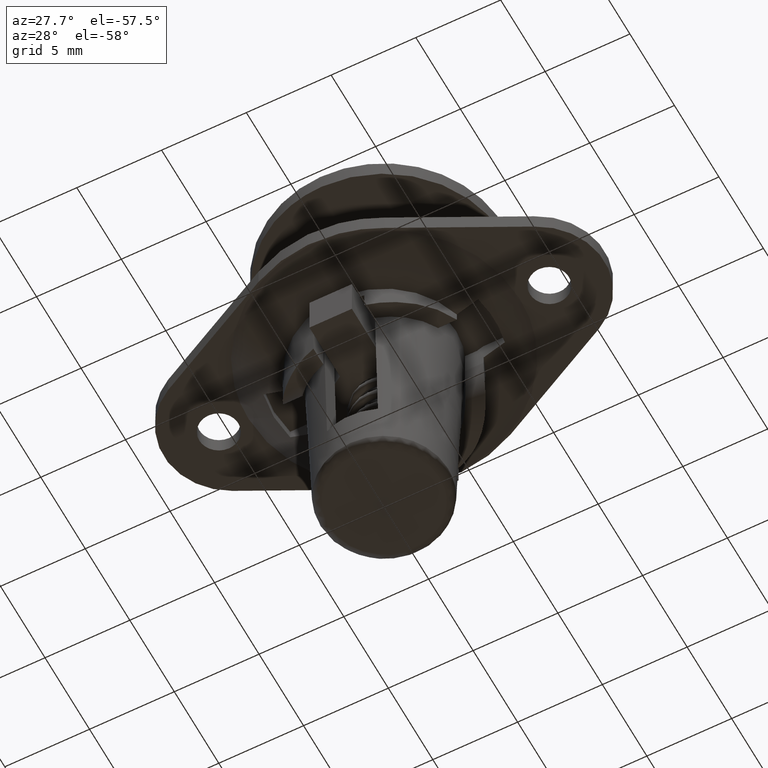
[diagram: clean part render]
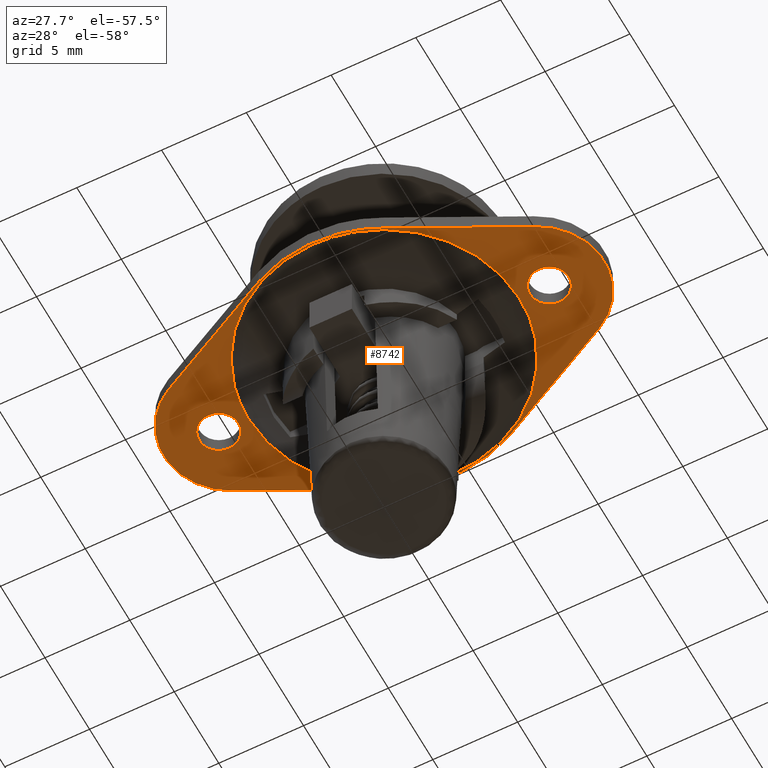
[diagram: same view with one face highlighted and labeled with its STEP entity id]
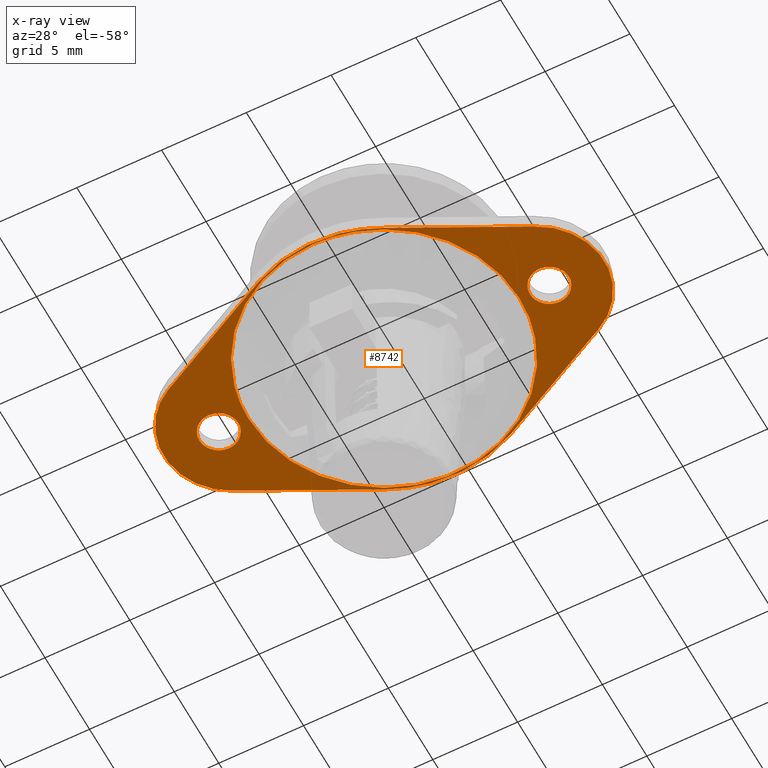
[diagram: x-ray of the same camera — body ghosted, the highlighted face saturated]
A machine part, auxiliary view. The second image highlights one B-rep face of the part: STEP entity #8742.
The next image is the same camera in x-ray: the body ghosted, the highlighted face saturated — about 3% of this face is hidden behind the body in this view.
In plain terms, the highlighted face is a freeform B-spline surface patch.
Its self-contained STEP definition (entity closure, byte-faithful):
#6653=CARTESIAN_POINT('',(-10.900000000000000,0.0,-7.999999999999900));
#6654=VERTEX_POINT('',#6653);
#6655=CARTESIAN_POINT('',(-10.552046704685250,-0.824148470492712,-7.999999999997280));
#6656=VERTEX_POINT('',#6655);
#6657=CARTESIAN_POINT('',(-10.900000000000000,0.0,-7.999999999999900));
#6658=CARTESIAN_POINT('',(-10.900035300623120,-0.105289725726984,-7.999999999999571));
#6659=CARTESIAN_POINT('',(-10.878150019083030,-0.263184165240447,-7.999999999999052));
#6660=CARTESIAN_POINT('',(-10.774832421665280,-0.552295228351691,-7.999999999998165));
#6661=CARTESIAN_POINT('',(-10.658504624150931,-0.720775286054009,-7.999999999997604));
#6662=CARTESIAN_POINT('',(-10.552046704685250,-0.824148470492712,-7.999999999997280));
#6663=B_SPLINE_CURVE_WITH_KNOTS('',3,(#6657,#6658,#6659,#6660,#6661,#6662),.UNSPECIFIED.,.F.,.U.,(4,1,1,4),(0.000000012686123,0.315854664908550,0.473770848220004,0.918842579905745),.UNSPECIFIED.);
#6664=EDGE_CURVE('',#6654,#6656,#6663,.T.);
#6666=CARTESIAN_POINT('',(-9.750000664746422,1.149999999999808,-7.999999999999901));
#6667=VERTEX_POINT('',#6666);
#6668=CARTESIAN_POINT('',(-9.750000664746422,1.149999999999808,-7.999999999999901));
#6669=CARTESIAN_POINT('',(-9.815856694185284,1.150002070243000,-7.999999999999899));
#6670=CARTESIAN_POINT('',(-9.971097299913305,1.136643387063590,-7.999999999999902));
#6671=CARTESIAN_POINT('',(-10.198132340221759,1.069296448872176,-7.999999999999907));
#6672=CARTESIAN_POINT('',(-10.437665834544500,0.935552444494431,-7.999999999999897));
#6673=CARTESIAN_POINT('',(-10.625466945124300,0.761083037786011,-7.999999999999878));
#6674=CARTESIAN_POINT('',(-10.776447736260970,0.538101250960247,-8.000000000000004));
#6675=CARTESIAN_POINT('',(-10.874990989102949,0.291649021468684,-7.999999999999893));
#6676=CARTESIAN_POINT('',(-10.900030497191789,0.098790530188240,-7.999999999999892));
#6677=CARTESIAN_POINT('',(-10.900000000000000,0.0,-7.999999999999900));
#6678=B_SPLINE_CURVE_WITH_KNOTS('',3,(#6668,#6669,#6670,#6671,#6672,#6673,#6674,#6675,#6676,#6677),.UNSPECIFIED.,.F.,.U.,(4,1,1,1,1,1,1,4),(0.000000048942034,0.197570362115641,0.465719467744257,0.705643079026272,1.016107629091632,1.227804094314206,1.510062185376091,1.806426735646137),.UNSPECIFIED.);
#6679=EDGE_CURVE('',#6667,#6654,#6678,.T.);
#6681=CARTESIAN_POINT('',(-8.600000000000000,0.0,-7.999999999999900));
#6682=VERTEX_POINT('',#6681);
#6683=CARTESIAN_POINT('',(-8.600000000000000,0.0,-7.999999999999900));
#6684=CARTESIAN_POINT('',(-8.599924127396992,0.127026258699681,-7.999999999999895));
#6685=CARTESIAN_POINT('',(-8.633871161686988,0.329243848655233,-7.999999999999917));
#6686=CARTESIAN_POINT('',(-8.761822741660108,0.608596515519283,-7.999999999999886));
#6687=CARTESIAN_POINT('',(-8.910758864911172,0.799457927925871,-7.999999999999908));
#6688=CARTESIAN_POINT('',(-9.099519268826759,0.956281017616971,-7.999999999999899));
#6689=CARTESIAN_POINT('',(-9.301865718877135,1.069300016572708,-7.999999999999892));
#6690=CARTESIAN_POINT('',(-9.528903785446017,1.136643407511188,-7.999999999999949));
#6691=CARTESIAN_POINT('',(-9.684144653954164,1.150002128915238,-7.999999999999829));
#6692=CARTESIAN_POINT('',(-9.750000664746422,1.149999999999808,-7.999999999999901));
#6693=B_SPLINE_CURVE_WITH_KNOTS('',3,(#6683,#6684,#6685,#6686,#6687,#6688,#6689,#6690,#6691,#6692),.UNSPECIFIED.,.F.,.U.,(4,1,1,1,1,1,1,4),(0.000000048713214,0.381042794343570,0.606849093334801,0.917311537844349,1.100784162428773,1.340707872894254,1.608857089966248,1.806427484974979),.UNSPECIFIED.);
#6694=EDGE_CURVE('',#6682,#6667,#6693,.T.);
#6696=CARTESIAN_POINT('',(-8.973071162493390,-0.847869071393267,-8.000000000004819));
#6697=VERTEX_POINT('',#6696);
#6698=CARTESIAN_POINT('',(-8.973071162493390,-0.847869071393267,-8.000000000004819));
#6699=CARTESIAN_POINT('',(-8.877808213001726,-0.760704837221626,-8.000000000004313));
#6700=CARTESIAN_POINT('',(-8.757428152951308,-0.605535715005010,-8.000000000003439));
#6701=CARTESIAN_POINT('',(-8.630863934168644,-0.312786360502125,-8.000000000001668));
#6702=CARTESIAN_POINT('',(-8.599925081763832,-0.124150896432877,-8.000000000000650));
#6703=CARTESIAN_POINT('',(-8.600000000000000,0.0,-7.999999999999900));
#6704=B_SPLINE_CURVE_WITH_KNOTS('',3,(#6698,#6699,#6700,#6701,#6702,#6703),.UNSPECIFIED.,.F.,.U.,(4,1,1,4),(0.000000013521598,0.387320494585099,0.580972865052217,0.953392855476119),.UNSPECIFIED.);
#6705=EDGE_CURVE('',#6697,#6682,#6704,.T.);
#6788=CARTESIAN_POINT('',(-9.749999335253566,-1.149999999999808,-7.999999999999900));
#6789=VERTEX_POINT('',#6788);
#6790=CARTESIAN_POINT('',(-10.552046704685250,-0.824148470492712,-7.999999999997280));
#6791=CARTESIAN_POINT('',(-10.459340756998120,-0.914505204986957,-7.999999999997548));
#6792=CARTESIAN_POINT('',(-10.297057650607680,-1.026041443008237,-7.999999999998200));
#6793=CARTESIAN_POINT('',(-10.018105314480890,-1.127771500038885,-7.999999999998952));
#6794=CARTESIAN_POINT('',(-9.851705566248549,-1.150030396406160,-7.999999999999607));
#6795=CARTESIAN_POINT('',(-9.749999335253566,-1.149999999999808,-7.999999999999900));
#6796=B_SPLINE_CURVE_WITH_KNOTS('',3,(#6790,#6791,#6792,#6793,#6794,#6795),.UNSPECIFIED.,.F.,.U.,(4,1,1,4),(0.000000010680414,0.388321604344121,0.582475456980643,0.887585074851957),.UNSPECIFIED.);
#6797=EDGE_CURVE('',#6656,#6789,#6796,.T.);
#6821=CARTESIAN_POINT('',(-9.749999335253566,-1.149999999999808,-7.999999999999900));
#6822=CARTESIAN_POINT('',(-9.652253523719374,-1.150028661139451,-8.000000000000529));
#6823=CARTESIAN_POINT('',(-9.483441473250990,-1.128337191817860,-8.000000000001574));
#6824=CARTESIAN_POINT('',(-9.214951421712232,-1.031047375591486,-8.000000000003297));
#6825=CARTESIAN_POINT('',(-9.058208892923163,-0.925949973917983,-8.000000000004283));
#6826=CARTESIAN_POINT('',(-8.973071162493390,-0.847869071393267,-8.000000000004819));
#6827=B_SPLINE_CURVE_WITH_KNOTS('',3,(#6821,#6822,#6823,#6824,#6825,#6826),.UNSPECIFIED.,.F.,.U.,(4,1,1,4),(5.150371E-009,0.293235382384166,0.506497182425102,0.853048144613039),.UNSPECIFIED.);
#6828=EDGE_CURVE('',#6789,#6697,#6827,.T.);
#6859=CARTESIAN_POINT('',(8.600000000000000,0.0,-7.999999999999900));
#6860=VERTEX_POINT('',#6859);
#6861=CARTESIAN_POINT('',(8.947953295314751,-0.824148470492712,-7.999999999997280));
#6862=VERTEX_POINT('',#6861);
#6863=CARTESIAN_POINT('',(8.600000000000000,0.0,-7.999999999999900));
#6864=CARTESIAN_POINT('',(8.599991045623384,-0.081354757863559,-7.999999999999661));
#6865=CARTESIAN_POINT('',(8.619362892252225,-0.263208108227133,-7.999999999999037));
#6866=CARTESIAN_POINT('',(8.723312022163571,-0.554109511263112,-7.999999999998186));
#6867=CARTESIAN_POINT('',(8.858738816582054,-0.737409508190836,-7.999999999997525));
#6868=CARTESIAN_POINT('',(8.947953295314751,-0.824148470492712,-7.999999999997280));
#6869=B_SPLINE_CURVE_WITH_KNOTS('',3,(#6863,#6864,#6865,#6866,#6867,#6868),.UNSPECIFIED.,.F.,.U.,(4,1,1,4),(0.000000012686505,0.244067662716665,0.545559741520143,0.918842579905742),.UNSPECIFIED.);
#6870=EDGE_CURVE('',#6860,#6862,#6869,.T.);
#6872=CARTESIAN_POINT('',(9.749999335253579,1.149999999999808,-7.999999999999900));
#6873=VERTEX_POINT('',#6872);
#6874=CARTESIAN_POINT('',(9.749999335253579,1.149999999999808,-7.999999999999900));
#6875=CARTESIAN_POINT('',(9.622977247118909,1.150066608400949,-7.999999999999903));
#6876=CARTESIAN_POINT('',(9.387815973203644,1.110638999334596,-7.999999999999910));
#6877=CARTESIAN_POINT('',(9.112819093249813,0.970086436589648,-7.999999999999879));
#6878=CARTESIAN_POINT('',(8.929449005385784,0.813805549771026,-7.999999999999953));
#6879=CARTESIAN_POINT('',(8.793713553724263,0.650486099947327,-7.999999999999837));
#6880=CARTESIAN_POINT('',(8.689935546304394,0.464649696751496,-7.999999999999933));
#6881=CARTESIAN_POINT('',(8.617223049436714,0.239907754940624,-7.999999999999844));
#6882=CARTESIAN_POINT('',(8.599986024347617,0.084674073480456,-7.999999999999838));
#6883=CARTESIAN_POINT('',(8.600000000000000,0.0,-7.999999999999900));
#6884=B_SPLINE_CURVE_WITH_KNOTS('',3,(#6874,#6875,#6876,#6877,#6878,#6879,#6880,#6881,#6882,#6883),.UNSPECIFIED.,.F.,.U.,(4,1,1,1,1,1,1,4),(0.000000048940833,0.381042636540744,0.705643079026415,0.917311157117825,1.100783705128980,1.340707316902257,1.552404500919723,1.806426735646170),.UNSPECIFIED.);
#6885=EDGE_CURVE('',#6873,#6860,#6884,.T.);
#6887=CARTESIAN_POINT('',(10.900000000000000,0.0,-7.999999999999900));
#6888=VERTEX_POINT('',#6887);
#6889=CARTESIAN_POINT('',(10.900000000000000,0.0,-7.999999999999900));
#6890=CARTESIAN_POINT('',(10.900155639149681,0.145859698175880,-7.999999999999893));
#6891=CARTESIAN_POINT('',(10.858250031563839,0.362130506599205,-7.999999999999903));
#6892=CARTESIAN_POINT('',(10.712048729897960,0.648191671462418,-7.999999999999895));
#6893=CARTESIAN_POINT('',(10.540904487728319,0.851612782776992,-7.999999999999910));
#6894=CARTESIAN_POINT('',(10.328833091677090,1.002882688740010,-7.999999999999895));
#6895=CARTESIAN_POINT('',(10.069840131943909,1.117714103009564,-7.999999999999867));
#6896=CARTESIAN_POINT('',(9.877024339214710,1.150072326469509,-8.0));
#6897=CARTESIAN_POINT('',(9.749999335253579,1.149999999999808,-7.999999999999900));
#6898=B_SPLINE_CURVE_WITH_KNOTS('',3,(#6889,#6890,#6891,#6892,#6893,#6894,#6895,#6896,#6897),.UNSPECIFIED.,.F.,.U.,(4,1,1,1,1,1,4),(0.000000048714302,0.437494154798415,0.649191426896494,0.959659455467271,1.227804603209104,1.425384739205318,1.806427484974978),.UNSPECIFIED.);
#6899=EDGE_CURVE('',#6888,#6873,#6898,.T.);
#6901=CARTESIAN_POINT('',(10.526928837506610,-0.847869071393267,-8.000000000004819));
#6902=VERTEX_POINT('',#6901);
#6903=CARTESIAN_POINT('',(10.526928837506610,-0.847869071393267,-8.000000000004819));
#6904=CARTESIAN_POINT('',(10.618515142448540,-0.764050284950643,-8.000000000004338));
#6905=CARTESIAN_POINT('',(10.730462870739689,-0.621705043255209,-8.000000000003485));
#6906=CARTESIAN_POINT('',(10.864432369495340,-0.332621062530906,-8.000000000001849));
#6907=CARTESIAN_POINT('',(10.900127049432600,-0.139061287572477,-8.000000000000709));
#6908=CARTESIAN_POINT('',(10.900000000000000,0.0,-7.999999999999900));
#6909=B_SPLINE_CURVE_WITH_KNOTS('',3,(#6903,#6904,#6905,#6906,#6907,#6908),.UNSPECIFIED.,.F.,.U.,(4,1,1,4),(0.000000013522319,0.372420003935394,0.536279028799606,0.953392855476121),.UNSPECIFIED.);
#6910=EDGE_CURVE('',#6902,#6888,#6909,.T.);
#6992=CARTESIAN_POINT('',(9.750000664746436,-1.149999999999808,-7.999999999999900));
#6993=VERTEX_POINT('',#6992);
#6994=CARTESIAN_POINT('',(8.947953295314751,-0.824148470492712,-7.999999999997280));
#6995=CARTESIAN_POINT('',(9.040660155574068,-0.914499982270607,-7.999999999997592));
#6996=CARTESIAN_POINT('',(9.222258832281025,-1.039340418963857,-7.999999999998198));
#6997=CARTESIAN_POINT('',(9.504994704093791,-1.132881222034677,-7.999999999999031));
#6998=CARTESIAN_POINT('',(9.671412581000775,-1.150009865130402,-7.999999999999713));
#6999=CARTESIAN_POINT('',(9.750000664746436,-1.149999999999808,-7.999999999999900));
#7000=B_SPLINE_CURVE_WITH_KNOTS('',3,(#6994,#6995,#6996,#6997,#6998,#6999),.UNSPECIFIED.,.F.,.U.,(4,1,1,4),(0.000000010682365,0.388321604344662,0.651820219940770,0.887585074851955),.UNSPECIFIED.);
#7001=EDGE_CURVE('',#6862,#6993,#7000,.T.);
#7025=CARTESIAN_POINT('',(9.750000664746436,-1.149999999999808,-7.999999999999900));
#7026=CARTESIAN_POINT('',(9.865522956316896,-1.150058664778676,-8.000000000000641));
#7027=CARTESIAN_POINT('',(10.052084555478331,-1.121630763479847,-8.000000000001807));
#7028=CARTESIAN_POINT('',(10.315768863732680,-1.011987045060999,-8.000000000003496));
#7029=CARTESIAN_POINT('',(10.454880396058750,-0.913922928641902,-8.000000000004340));
#7030=CARTESIAN_POINT('',(10.526928837506610,-0.847869071393267,-8.000000000004819));
#7031=B_SPLINE_CURVE_WITH_KNOTS('',3,(#7025,#7026,#7027,#7028,#7029,#7030),.UNSPECIFIED.,.F.,.U.,(4,1,1,4),(5.150476E-009,0.346550967324778,0.559812767371451,0.853048144613035),.UNSPECIFIED.);
#7032=EDGE_CURVE('',#6993,#6902,#7031,.T.);
#7350=CARTESIAN_POINT('',(-0.457544518845940,7.987255736114569,-8.000015461254641));
#7351=VERTEX_POINT('',#7350);
#7352=CARTESIAN_POINT('',(8.000371227433691,0.0,-8.0));
#7353=VERTEX_POINT('',#7352);
#7354=CARTESIAN_POINT('',(-0.457544518845940,7.987255736114569,-8.000015461254641));
#7355=CARTESIAN_POINT('',(0.050402469978241,8.016416794421904,-8.000014997043213));
#7356=CARTESIAN_POINT('',(0.850526718629831,7.985761871878577,-8.000014195921944));
#7357=CARTESIAN_POINT('',(1.901746484645055,7.786168125157229,-8.000012998011849));
#7358=CARTESIAN_POINT('',(2.714736504424685,7.541310599579709,-8.000011988995430));
#7359=CARTESIAN_POINT('',(3.513400594189876,7.206014387913483,-8.000010911295290));
#7360=CARTESIAN_POINT('',(4.344202890477302,6.742649957464578,-8.000009685676080));
#7361=CARTESIAN_POINT('',(5.056924500741812,6.219951325509177,-8.000008520013324));
#7362=CARTESIAN_POINT('',(5.720712597663130,5.612764100559030,-8.000007324536501));
#7363=CARTESIAN_POINT('',(6.319986954648026,4.940654023512678,-8.000006132156200));
#7364=CARTESIAN_POINT('',(6.848583040526605,4.169603148983364,-8.000004917784858));
#7365=CARTESIAN_POINT('',(7.301052576318405,3.314102475720345,-8.000003699912407));
#7366=CARTESIAN_POINT('',(7.647061601569688,2.427378009013414,-8.000002556419014));
#7367=CARTESIAN_POINT('',(7.927667207018319,1.288886909238484,-8.000001246383171));
#7368=CARTESIAN_POINT('',(8.000420865386536,0.474861065236356,-8.000000433269696));
#7369=CARTESIAN_POINT('',(8.000371227433691,0.0,-8.0));
#7370=B_SPLINE_CURVE_WITH_KNOTS('',3,(#7354,#7355,#7356,#7357,#7358,#7359,#7360,#7361,#7362,#7363,#7364,#7365,#7366,#7367,#7368,#7369),.UNSPECIFIED.,.F.,.U.,(4,1,1,1,1,1,1,1,1,1,1,1,1,4),(0.000000020816081,1.526336210216650,2.391264102799202,3.205311555998742,4.070237348193826,4.986048899443960,6.054491332078333,6.715884623484827,7.682561736128794,8.751007131756007,9.514177413188859,10.582619871983569,11.600182790012930,13.024757562581639),.UNSPECIFIED.);
#7371=EDGE_CURVE('',#7351,#7353,#7370,.T.);
#7373=CARTESIAN_POINT('',(-0.000001752265324,-8.000371227433675,-7.999999094590153));
#7374=VERTEX_POINT('',#7373);
#7375=CARTESIAN_POINT('',(8.000371227433691,0.0,-8.0));
#7376=CARTESIAN_POINT('',(8.000380668635353,-0.343625340215708,-8.000000000001053));
#7377=CARTESIAN_POINT('',(7.956030042700381,-1.030876765496890,-7.999999994981906));
#7378=CARTESIAN_POINT('',(7.779654635979551,-1.932021393990635,-7.999999975021269));
#7379=CARTESIAN_POINT('',(7.503176916572967,-2.823713377481068,-7.999999943732089));
#7380=CARTESIAN_POINT('',(7.168921608930335,-3.590448400054093,-7.999999905903939));
#7381=CARTESIAN_POINT('',(6.701236309693859,-4.398569464123348,-7.999999852975831));
#7382=CARTESIAN_POINT('',(6.071756728958961,-5.258391641755497,-7.999999781736761));
#7383=CARTESIAN_POINT('',(5.270002778274299,-6.060126120339694,-7.999999691001633));
#7384=CARTESIAN_POINT('',(4.267146613618974,-6.799123634231598,-7.999999577507547));
#7385=CARTESIAN_POINT('',(3.385282915706038,-7.273975328171029,-7.999999477705880));
#7386=CARTESIAN_POINT('',(2.390706876711819,-7.654107102051978,-7.999999365149155));
#7387=CARTESIAN_POINT('',(1.325405835158460,-7.924439854827599,-7.999999244587431));
#7388=CARTESIAN_POINT('',(0.474533216708887,-8.000416989677134,-7.999999148293974));
#7389=CARTESIAN_POINT('',(-0.000001752265324,-8.000371227433675,-7.999999094590153));
#7390=B_SPLINE_CURVE_WITH_KNOTS('',3,(#7375,#7376,#7377,#7378,#7379,#7380,#7381,#7382,#7383,#7384,#7385,#7386,#7387,#7388,#7389),.UNSPECIFIED.,.F.,.U.,(4,1,1,1,1,1,1,1,1,1,1,1,4),(0.000000021060544,1.030876758375387,2.061763904118584,2.749025168686940,3.829002991838628,4.565349134219175,5.547153106651091,7.019822289761789,7.952532253797913,9.277961228973622,10.014311269035710,11.143374880434919,12.566974988187370),.UNSPECIFIED.);
#7391=EDGE_CURVE('',#7353,#7374,#7390,.T.);
#7393=CARTESIAN_POINT('',(-8.000373705826977,0.0,-7.999998189180420));
#7394=VERTEX_POINT('',#7393);
#7395=CARTESIAN_POINT('',(-0.000001752265324,-8.000371227433675,-7.999999094590153));
#7396=CARTESIAN_POINT('',(-0.490899724537613,-8.000424136690635,-7.999999039034769));
#7397=CARTESIAN_POINT('',(-1.325402326987317,-7.923308493813060,-7.999998944593288));
#7398=CARTESIAN_POINT('',(-2.549210034609816,-7.612777775472211,-7.999998806093842));
#7399=CARTESIAN_POINT('',(-3.504652554219449,-7.217016903393625,-7.999998697965447));
#7400=CARTESIAN_POINT('',(-4.413751765005011,-6.694601556344026,-7.999998595081914));
#7401=CARTESIAN_POINT('',(-5.322730728542441,-6.020534964023778,-7.999998492211706));
#7402=CARTESIAN_POINT('',(-6.226740967047103,-5.088345625143157,-7.999998389904464));
#7403=CARTESIAN_POINT('',(-6.981414702283568,-3.973729083094337,-7.999998304496464));
#7404=CARTESIAN_POINT('',(-7.448465862288059,-2.978285012288403,-7.999998251640806));
#7405=CARTESIAN_POINT('',(-7.761160200468209,-2.011865411167924,-7.999998216251858));
#7406=CARTESIAN_POINT('',(-7.952802959886282,-1.063602759591307,-7.999998194564451));
#7407=CARTESIAN_POINT('',(-8.000388389041472,-0.359989717101924,-7.999998189178551));
#7408=CARTESIAN_POINT('',(-8.000373705826977,0.0,-7.999998189180420));
#7409=B_SPLINE_CURVE_WITH_KNOTS('',3,(#7395,#7396,#7397,#7398,#7399,#7400,#7401,#7402,#7403,#7404,#7405,#7406,#7407,#7408),.UNSPECIFIED.,.F.,.U.,(4,1,1,1,1,1,1,1,1,1,1,4),(0.000000021112305,1.472685221364277,2.503573721912755,3.779911291709928,4.565348924060438,5.645322599795012,7.167091324435841,8.443434654823768,9.670680143414437,10.456120581421660,11.487005852311000,12.566974409838391),.UNSPECIFIED.);
#7410=EDGE_CURVE('',#7374,#7394,#7409,.T.);
#7555=CARTESIAN_POINT('',(-8.000373705826977,0.0,-7.999998189180420));
#7556=CARTESIAN_POINT('',(-8.000475943245007,0.583392522133441,-7.999998855923516));
#7557=CARTESIAN_POINT('',(-7.901623848020287,1.482070521436893,-7.999999989874089));
#7558=CARTESIAN_POINT('',(-7.598268526138782,2.545273651810575,-8.000001532639155));
#7559=CARTESIAN_POINT('',(-7.222251682998832,3.499490832405730,-8.000003029261524));
#7560=CARTESIAN_POINT('',(-6.713335708458327,4.412519413308869,-8.000004622261562));
#7561=CARTESIAN_POINT('',(-5.894346687090305,5.456645109975817,-8.000006699823580));
#7562=CARTESIAN_POINT('',(-5.027036754670609,6.267768120539619,-8.000008563209914));
#7563=CARTESIAN_POINT('',(-4.082968522109101,6.902953620871421,-8.000010308345802));
#7564=CARTESIAN_POINT('',(-3.126238218668429,7.390271057440480,-8.000011898127555));
#7565=CARTESIAN_POINT('',(-1.947396800233673,7.804714795074977,-8.000013644369489));
#7566=CARTESIAN_POINT('',(-0.992754797333900,7.956670963416160,-8.000014848558587));
#7567=CARTESIAN_POINT('',(-0.457544518845940,7.987255736114569,-8.000015461254641));
#7568=B_SPLINE_CURVE_WITH_KNOTS('',3,(#7555,#7556,#7557,#7558,#7559,#7560,#7561,#7562,#7563,#7564,#7565,#7566,#7567),.UNSPECIFIED.,.F.,.U.,(4,1,1,1,1,1,1,1,1,1,4),(0.000000019577339,1.750150097612730,2.696180194262361,3.311100980821877,4.824753526160269,5.818087745732053,7.284412093109928,8.372348953423972,9.223777593253638,10.500923232813260,12.109164239435550),.UNSPECIFIED.);
#7569=EDGE_CURVE('',#7394,#7351,#7568,.T.);
#8365=CARTESIAN_POINT('',(10.822200000000000,3.561000000000120,-7.999999999999900));
#8366=VERTEX_POINT('',#8365);
#8367=CARTESIAN_POINT('',(3.690000000000000,7.211000000000000,-7.999999999999900));
#8368=VERTEX_POINT('',#8367);
#8369=CARTESIAN_POINT('',(10.822200000000000,3.561000000000120,-7.999999999999900));
#8370=CARTESIAN_POINT('',(3.690000000000000,7.211000000000000,-7.999999999999900));
#8371=QUASI_UNIFORM_CURVE('',1,(#8369,#8370),.UNSPECIFIED.,.F.,.U.);
#8372=EDGE_CURVE('',#8366,#8368,#8371,.T.);
#8410=CARTESIAN_POINT('',(10.753063837434420,-3.595381368072060,-7.999999999999900));
#8411=VERTEX_POINT('',#8410);
#8412=CARTESIAN_POINT('',(10.753063837434420,-3.595381368072060,-7.999999999999900));
#8413=CARTESIAN_POINT('',(11.064196507876069,-3.443789639563049,-7.999999999999893));
#8414=CARTESIAN_POINT('',(11.500981075032930,-3.155235548826060,-7.999999999999925));
#8415=CARTESIAN_POINT('',(12.085593652685850,-2.579067523036953,-7.999999999999885));
#8416=CARTESIAN_POINT('',(12.487651903343581,-2.010266976642870,-7.999999999999868));
#8417=CARTESIAN_POINT('',(12.804309236534150,-1.302289914771131,-7.999999999999933));
#8418=CARTESIAN_POINT('',(12.960625051653180,-0.672436815747191,-7.999999999999885));
#8419=CARTESIAN_POINT('',(13.013440975172569,-0.038803288303555,-7.999999999999908));
#8420=CARTESIAN_POINT('',(12.974229131695230,0.619591187710536,-7.999999999999890));
#8421=CARTESIAN_POINT('',(12.821816664901270,1.239024145783497,-7.999999999999900));
#8422=CARTESIAN_POINT('',(12.578061277859250,1.813392428641519,-7.999999999999899));
#8423=CARTESIAN_POINT('',(12.291002188350470,2.302138033632645,-7.999999999999901));
#8424=CARTESIAN_POINT('',(11.872649255338979,2.812346443000986,-7.999999999999897));
#8425=CARTESIAN_POINT('',(11.372314165058530,3.243203270877507,-7.999999999999902));
#8426=CARTESIAN_POINT('',(10.996783707675700,3.471661178075468,-7.999999999999892));
#8427=CARTESIAN_POINT('',(10.822200000000000,3.561000000000120,-7.999999999999900));
#8428=B_SPLINE_CURVE_WITH_KNOTS('',3,(#8412,#8413,#8414,#8415,#8416,#8417,#8418,#8419,#8420,#8421,#8422,#8423,#8424,#8425,#8426,#8427),.UNSPECIFIED.,.F.,.U.,(4,1,1,1,1,1,1,1,1,1,1,1,1,4),(0.000000052563568,1.038255325153151,1.557393222219384,2.457232179053310,3.114803129262853,3.876210828696831,4.395343508136347,5.018283443044895,5.848892955207690,6.298813730382306,6.887169986239736,7.544746027826094,8.271527804442620,8.859874148150453),.UNSPECIFIED.);
#8429=EDGE_CURVE('',#8411,#8366,#8428,.T.);
#8467=CARTESIAN_POINT('',(3.777978903718435,-7.164975603800650,-7.999999999999900));
#8468=VERTEX_POINT('',#8467);
#8469=CARTESIAN_POINT('',(3.777978903718435,-7.164975603800650,-7.999999999999900));
#8470=CARTESIAN_POINT('',(10.753063837434420,-3.595381368072060,-7.999999999999900));
#8471=QUASI_UNIFORM_CURVE('',1,(#8469,#8470),.UNSPECIFIED.,.F.,.U.);
#8472=EDGE_CURVE('',#8468,#8411,#8471,.T.);
#8504=CARTESIAN_POINT('',(-3.601728211849590,-7.255174283776150,-7.999999999999900));
#8505=VERTEX_POINT('',#8504);
#8506=CARTESIAN_POINT('',(-3.601728211849590,-7.255174283776150,-7.999999999999900));
#8507=CARTESIAN_POINT('',(-3.029817254390708,-7.539271175171118,-7.999999999999909));
#8508=CARTESIAN_POINT('',(-2.121221028149031,-7.863000099465240,-7.999999999999888));
#8509=CARTESIAN_POINT('',(-0.918396526731373,-8.063438388465151,-7.999999999999900));
#8510=CARTESIAN_POINT('',(-0.000940342342727,-8.116707851508256,-7.999999999999897));
#8511=CARTESIAN_POINT('',(0.837659179798861,-8.072329203834299,-7.999999999999898));
#8512=CARTESIAN_POINT('',(1.725042465980076,-7.929083830659994,-7.999999999999914));
#8513=CARTESIAN_POINT('',(2.690054741427742,-7.668750984250891,-7.999999999999874));
#8514=CARTESIAN_POINT('',(3.389654633095143,-7.369768706194904,-7.999999999999928));
#8515=CARTESIAN_POINT('',(3.777978903718435,-7.164975603800650,-7.999999999999900));
#8516=B_SPLINE_CURVE_WITH_KNOTS('',3,(#8506,#8507,#8508,#8509,#8510,#8511,#8512,#8513,#8514,#8515),.UNSPECIFIED.,.F.,.U.,(4,1,1,1,1,1,1,4),(6.367967E-009,1.915711581739767,2.873571661377319,3.651833467203531,4.669541714940941,5.387936708749146,6.345796493780215,7.662845884414741),.UNSPECIFIED.);
#8517=EDGE_CURVE('',#8505,#8468,#8516,.T.);
#8547=CARTESIAN_POINT('',(-10.890826205881620,-3.524879609171265,-7.999999999999900));
#8548=VERTEX_POINT('',#8547);
#8549=CARTESIAN_POINT('',(-10.890826205881620,-3.524879609171265,-7.999999999999900));
#8550=CARTESIAN_POINT('',(-3.601728211849590,-7.255174283776150,-7.999999999999900));
#8551=QUASI_UNIFORM_CURVE('',1,(#8549,#8550),.UNSPECIFIED.,.F.,.U.);
#8552=EDGE_CURVE('',#8548,#8505,#8551,.T.);
#8584=CARTESIAN_POINT('',(-10.822200000000000,3.561000000000120,-7.999999999999900));
#8585=VERTEX_POINT('',#8584);
#8586=CARTESIAN_POINT('',(-10.822200000000000,3.561000000000120,-7.999999999999900));
#8587=CARTESIAN_POINT('',(-11.114858485826240,3.411326385778124,-7.999999999999899));
#8588=CARTESIAN_POINT('',(-11.596729887924480,3.084111536505993,-7.999999999999909));
#8589=CARTESIAN_POINT('',(-12.120946868995590,2.530049789338327,-7.999999999999893));
#8590=CARTESIAN_POINT('',(-12.535665173897319,1.919008724628280,-7.999999999999877));
#8591=CARTESIAN_POINT('',(-12.819883506703031,1.271233104770452,-7.999999999999965));
#8592=CARTESIAN_POINT('',(-12.962447337335041,0.627250299812904,-7.999999999999877));
#8593=CARTESIAN_POINT('',(-13.008365652730941,0.095809154049057,-7.999999999999905));
#8594=CARTESIAN_POINT('',(-12.992705404978990,-0.381083602830237,-7.999999999999903));
#8595=CARTESIAN_POINT('',(-12.898469586317630,-0.963968333638238,-7.999999999999903));
#8596=CARTESIAN_POINT('',(-12.730022419588190,-1.483800321371288,-7.999999999999886));
#8597=CARTESIAN_POINT('',(-12.449086338262580,-2.053927341952400,-7.999999999999937));
#8598=CARTESIAN_POINT('',(-12.126562937416400,-2.522954349382661,-7.999999999999826));
#8599=CARTESIAN_POINT('',(-11.600017624266780,-3.072651645922695,-8.000000000000004));
#8600=CARTESIAN_POINT('',(-11.180538342203320,-3.369570092032947,-7.999999999999801));
#8601=CARTESIAN_POINT('',(-10.890826205881620,-3.524879609171265,-7.999999999999900));
#8602=B_SPLINE_CURVE_WITH_KNOTS('',3,(#8586,#8587,#8588,#8589,#8590,#8591,#8592,#8593,#8594,#8595,#8596,#8597,#8598,#8599,#8600,#8601),.UNSPECIFIED.,.F.,.U.,(4,1,1,1,1,1,1,1,1,1,1,1,1,4),(0.000000048817940,0.986114915770759,1.734221006639335,2.278292510646374,3.196419107946606,3.842507288518858,4.250552019261289,4.794609334030453,5.270660732530429,6.018766234579182,6.426820923265221,7.174920253865612,7.718996183310912,8.705111795800658),.UNSPECIFIED.);
#8603=EDGE_CURVE('',#8585,#8548,#8602,.T.);
#8639=CARTESIAN_POINT('',(-3.690000150076360,7.210999923196400,-7.999999999999900));
#8640=VERTEX_POINT('',#8639);
#8641=CARTESIAN_POINT('',(-3.690000150076360,7.210999923196400,-7.999999999999900));
#8642=CARTESIAN_POINT('',(-10.822200000000000,3.561000000000120,-7.999999999999900));
#8643=QUASI_UNIFORM_CURVE('',1,(#8641,#8642),.UNSPECIFIED.,.F.,.U.);
#8644=EDGE_CURVE('',#8640,#8585,#8643,.T.);
#8676=CARTESIAN_POINT('',(3.690000000000000,7.211000000000000,-7.999999999999900));
#8677=CARTESIAN_POINT('',(3.352499343325664,7.383734192408411,-7.999999999999900));
#8678=CARTESIAN_POINT('',(2.579577027896144,7.713079023602117,-7.999999999999936));
#8679=CARTESIAN_POINT('',(1.395201160292843,8.012473802428662,-7.999999999999844));
#8680=CARTESIAN_POINT('',(0.060649370357140,8.136116888455375,-8.000000000000004));
#8681=CARTESIAN_POINT('',(-1.138770361549428,8.051780145070916,-7.999999999999839));
#8682=CARTESIAN_POINT('',(-2.445277781884821,7.757207189316842,-7.999999999999951));
#8683=CARTESIAN_POINT('',(-3.228175074541535,7.447423933821833,-7.999999999999860));
#8684=CARTESIAN_POINT('',(-3.690000150076360,7.210999923196400,-7.999999999999900));
#8685=B_SPLINE_CURVE_WITH_KNOTS('',3,(#8676,#8677,#8678,#8679,#8680,#8681,#8682,#8683,#8684),.UNSPECIFIED.,.F.,.U.,(4,1,1,1,1,1,4),(6.365457E-009,1.137410185192386,2.514286118369654,3.651705726493603,5.148292244284367,6.106118523492401,7.662577838958778),.UNSPECIFIED.);
#8686=EDGE_CURVE('',#8368,#8640,#8685,.T.);
#8705=CARTESIAN_POINT('',(-14.298481003939861,8.909528517482848,-8.0));
#8706=CARTESIAN_POINT('',(14.298485071097151,8.909528517482848,-8.0));
#8707=CARTESIAN_POINT('',(-14.298481003939861,-8.908570338657983,-8.0));
#8708=CARTESIAN_POINT('',(14.298485071097151,-8.908570338657983,-8.0));
#8709=B_SPLINE_SURFACE_WITH_KNOTS('',1,1,((#8705,#8707),(#8706,#8708)),.UNSPECIFIED.,.F.,.F.,.U.,(2,2),(2,2),(0.0,28.596966075037010),(0.0,17.818098856140828),.UNSPECIFIED.);
#8710=ORIENTED_EDGE('',*,*,#8686,.F.);
#8711=ORIENTED_EDGE('',*,*,#8372,.F.);
#8712=ORIENTED_EDGE('',*,*,#8429,.F.);
#8713=ORIENTED_EDGE('',*,*,#8472,.F.);
#8714=ORIENTED_EDGE('',*,*,#8517,.F.);
#8715=ORIENTED_EDGE('',*,*,#8552,.F.);
#8716=ORIENTED_EDGE('',*,*,#8603,.F.);
#8717=ORIENTED_EDGE('',*,*,#8644,.F.);
#8718=EDGE_LOOP('',(#8710,#8711,#8712,#8713,#8714,#8715,#8716,#8717));
#8719=FACE_OUTER_BOUND('',#8718,.T.);
#8720=ORIENTED_EDGE('',*,*,#7569,.F.);
#8721=ORIENTED_EDGE('',*,*,#7410,.F.);
#8722=ORIENTED_EDGE('',*,*,#7391,.F.);
#8723=ORIENTED_EDGE('',*,*,#7371,.F.);
#8724=EDGE_LOOP('',(#8720,#8721,#8722,#8723));
#8725=FACE_BOUND('',#8724,.T.);
#8726=ORIENTED_EDGE('',*,*,#6694,.T.);
#8727=ORIENTED_EDGE('',*,*,#6679,.T.);
#8728=ORIENTED_EDGE('',*,*,#6664,.T.);
#8729=ORIENTED_EDGE('',*,*,#6797,.T.);
#8730=ORIENTED_EDGE('',*,*,#6828,.T.);
#8731=ORIENTED_EDGE('',*,*,#6705,.T.);
#8732=EDGE_LOOP('',(#8726,#8727,#8728,#8729,#8730,#8731));
#8733=FACE_BOUND('',#8732,.T.);
#8734=ORIENTED_EDGE('',*,*,#6899,.T.);
#8735=ORIENTED_EDGE('',*,*,#6885,.T.);
#8736=ORIENTED_EDGE('',*,*,#6870,.T.);
#8737=ORIENTED_EDGE('',*,*,#7001,.T.);
#8738=ORIENTED_EDGE('',*,*,#7032,.T.);
#8739=ORIENTED_EDGE('',*,*,#6910,.T.);
#8740=EDGE_LOOP('',(#8734,#8735,#8736,#8737,#8738,#8739));
#8741=FACE_BOUND('',#8740,.T.);
#8742=ADVANCED_FACE('',(#8719,#8725,#8733,#8741),#8709,.T.);